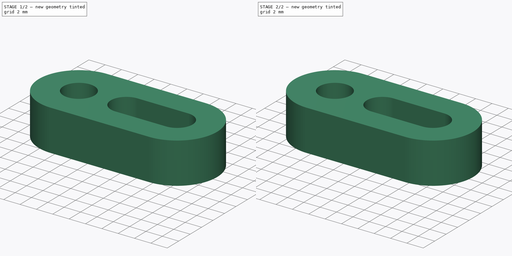
[diagram: build sequence overview — one tinted view per stage of 2, left to right]
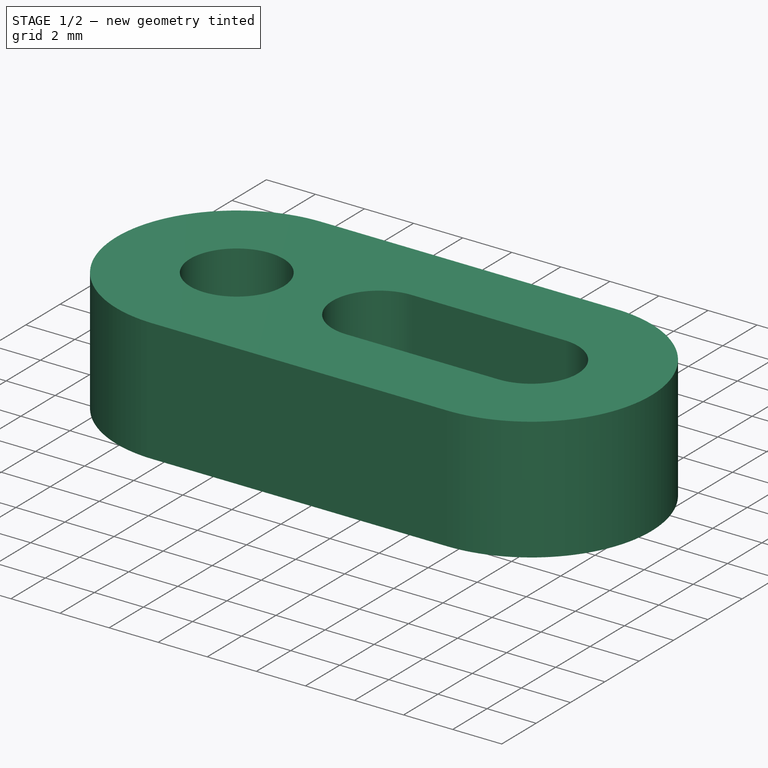
[diagram: stage 1 of 2 — iso view after this stage's code; geometry added in this stage tinted green]
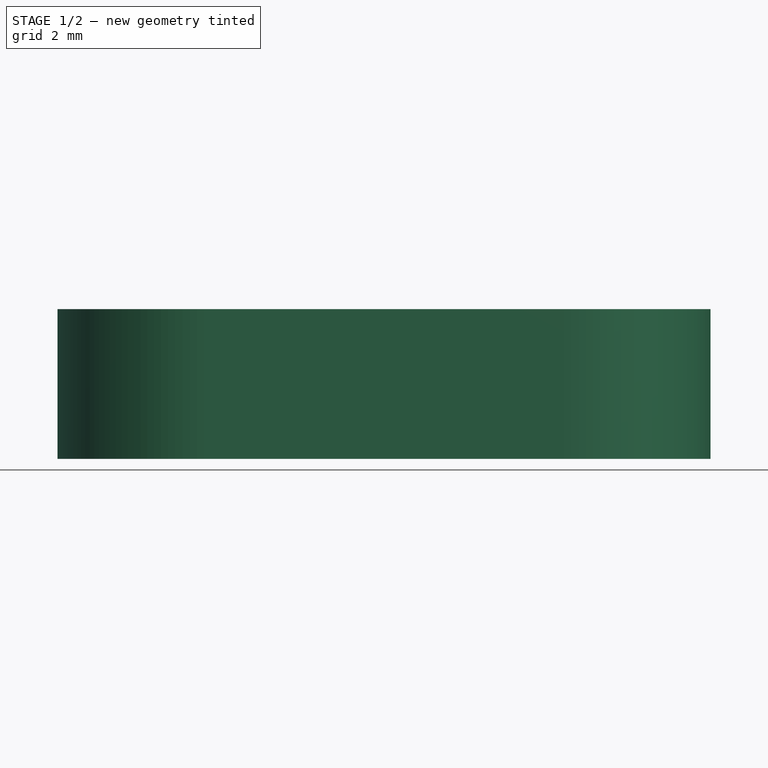
[diagram: stage 1 of 2 — front view after this stage's code; geometry added in this stage tinted green]
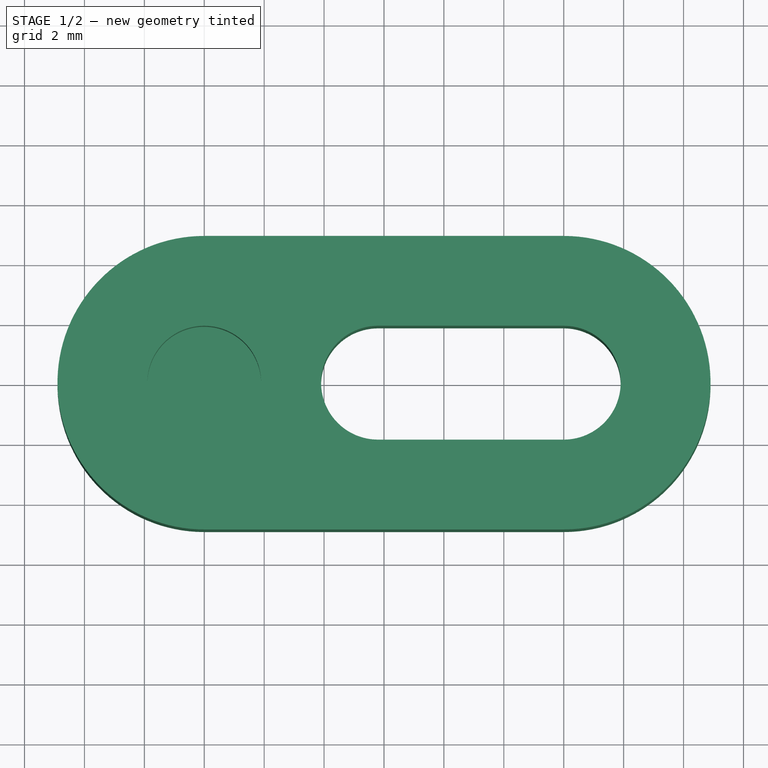
[diagram: stage 1 of 2 — top view after this stage's code; geometry added in this stage tinted green]
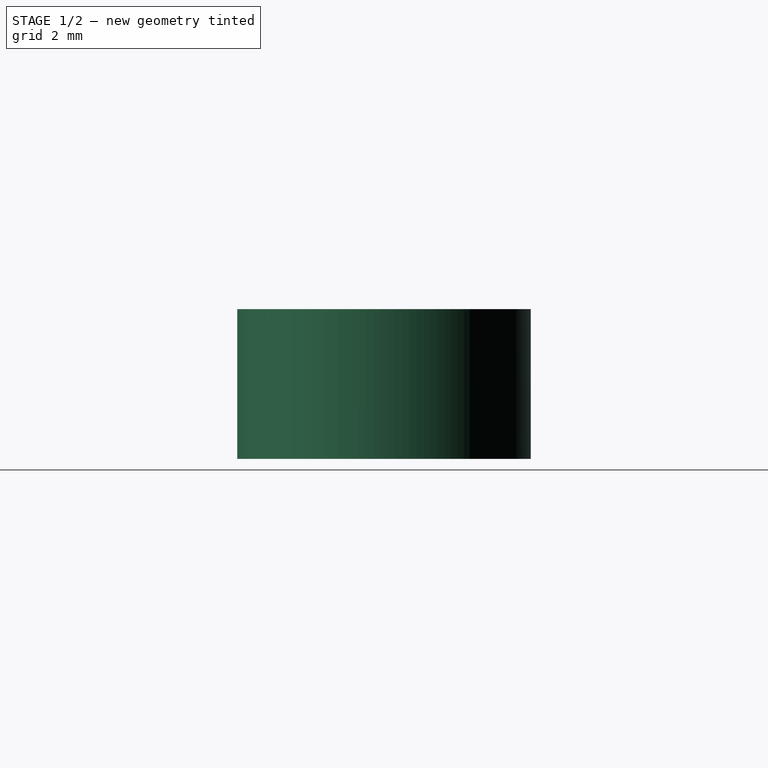
[diagram: stage 1 of 2 — right view after this stage's code; geometry added in this stage tinted green]
FCSTD DOCUMENT  (FreeCAD 0.19R)
Label: attach
License: All rights reserved
LicenseURL: http://en.wikipedia.org/wiki/All_rights_reserved
objects: Sketcher::SketchObject×1, PartDesign::Pad×1, PartDesign::Body×1, Part::Cylinder×1, Part::Cut×1
note: 6 computed .brp shape members not serialized (recipe doc carries the construction recipe); baked Part::Feature solids carry a one-line shape summary decoded from their .brp

FEATURE [Sketcher::SketchObject] Sketch
  FullyConstrained = true
  MapMode = 5
  Support = -> [XY_Plane]
  sketch-geometry (15):
    g0: LineSegment StartX=-6 StartY=4.9 StartZ=0 EndX=6 EndY=4.9 EndZ=0
    g1: LineSegment StartX=-6 StartY=-4.9 StartZ=0 EndX=6 EndY=-4.9 EndZ=0
    g2: ArcOfCircle CenterX=-6 CenterY=5e-16 CenterZ=0 NormalX=0 NormalY=0 NormalZ=1 AngleXU=0 Radius=4.9 StartAngle=1.5708 EndAngle=4.71239
    g3: ArcOfCircle CenterX=6 CenterY=-4e-16 CenterZ=0 NormalX=0 NormalY=0 NormalZ=1 AngleXU=0 Radius=4.9 StartAngle=4.71239 EndAngle=7.85398
    g4: Circle CenterX=-6 CenterY=5e-16 CenterZ=0 NormalX=0 NormalY=0 NormalZ=1 AngleXU=0 Radius=1.9
    g5: LineSegment StartX=-0.2 StartY=1.9 StartZ=0 EndX=6 EndY=1.9 EndZ=0
    g6: LineSegment StartX=-0.2 StartY=-1.9 StartZ=0 EndX=6 EndY=-1.9 EndZ=0
    g7: ArcOfCircle CenterX=-0.2 CenterY=-1e-16 CenterZ=0 NormalX=0 NormalY=0 NormalZ=1 AngleXU=0 Radius=1.9 StartAngle=1.5708 EndAngle=4.71239
    g8: ArcOfCircle CenterX=6 CenterY=-1e-16 CenterZ=0 NormalX=0 NormalY=0 NormalZ=1 AngleXU=0 Radius=1.9 StartAngle=4.71239 EndAngle=7.85398
    g9: GeomPoint X=7.9 Y=0 Z=0
    g10: GeomPoint X=10.9 Y=0 Z=0
    g11: GeomPoint X=-2.1 Y=0 Z=0
    g12: GeomPoint X=-4.1 Y=0 Z=0
    g13: GeomPoint X=-7.9 Y=0 Z=0
    g14: GeomPoint X=-10.9 Y=0 Z=0
  constraints (34):
    c: Symmetric(g0,g1,g-1)
    c: Tangent(g3,g0) = 1.5708
    c: Tangent(g2,g0) = 1.5708
    c: Tangent(g2,g1) = -1.5708
    c: Tangent(g3,g1) = -1.5708
    c: Coincident(g4,g2)
    c: Radius(g4) = 1.9
    c: DistanceX(g0,g0) = 12
    c: Symmetric(g0,g0,g-2)
    c: Horizontal(g5)
    c: Horizontal(g6)
    c: Equal(g6,g5)
    c: Symmetric(g5,g6,g-1)
    c: Coincident(g7,g6)
    c: Coincident(g8,g6)
    c: Tangent(g8,g5) = 1.5708
    c: Tangent(g7,g5) = 1.5708
    c: Radius(g8) = 1.9
    c: PointOnObject(g9,g8)
    c: PointOnObject(g9,g-1)
    c: PointOnObject(g10,g3)
    c: PointOnObject(g10,g-1)
    c: DistanceX(g9,g10) = 3
    c: PointOnObject(g11,g7)
    c: PointOnObject(g12,g-1)
    c: PointOnObject(g11,g-1)
    c: DistanceX(g12,g11) = 2
    c: PointOnObject(g13,g4)
    c: PointOnObject(g14,g2)
    c: PointOnObject(g14,g-1)
    c: PointOnObject(g13,g-1)
    c: DistanceX(g14,g13) = 3
    c: DistanceY(g1,g0) = 9.8
    c: PointOnObject(g12,g4)
FEATURE [PartDesign::Pad] Pad
  Direction = (1,1,1)
  Length = 5
  Length2 = 100
  Profile = -> Sketch
  Type = 0
FEATURE [PartDesign::Body] Body
  Group = -> [Sketch,Pad]
  Origin = -> Origin
  Tip = -> Pad
FEATURE [Part::Cylinder] Cylinder
  Angle = 360
  AttacherType = Attacher::AttachEngine3D
  Height = 3
  Placement = pos=(-6,0,0) rot=(0,0,1;0rad)
  Radius = 3
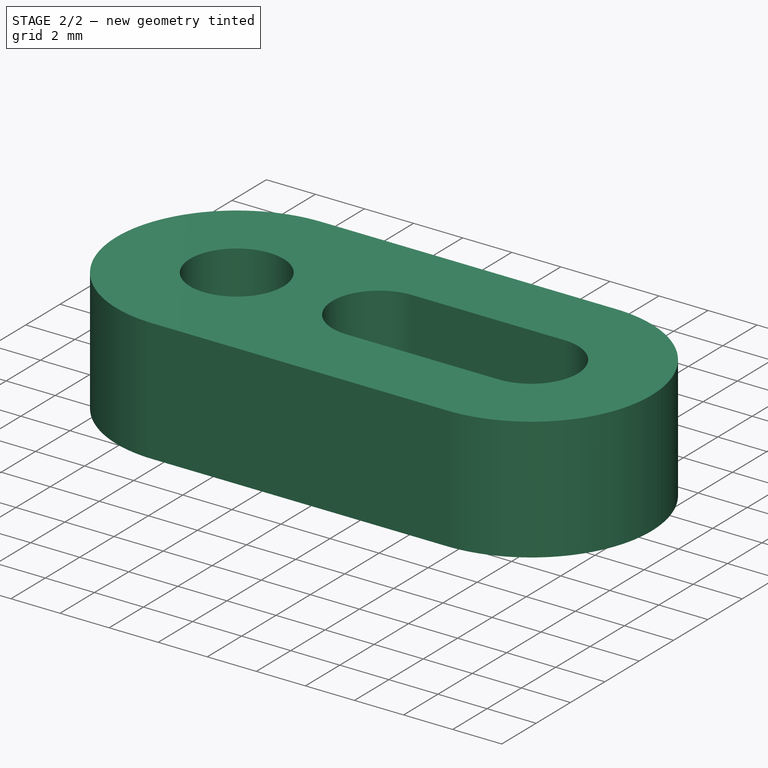
[diagram: stage 2 of 2 — iso view after this stage's code; geometry added in this stage tinted green]
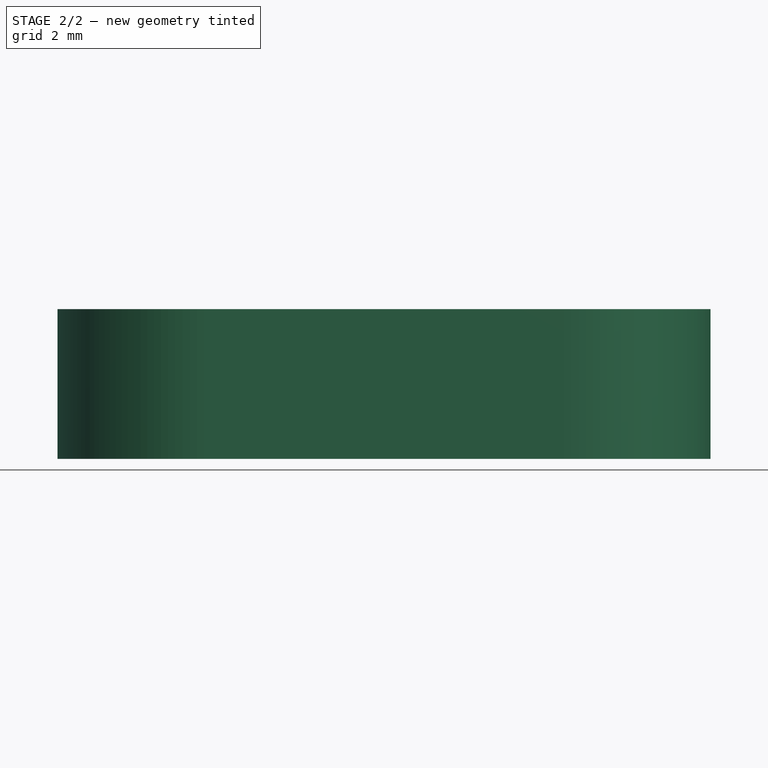
[diagram: stage 2 of 2 — front view after this stage's code; geometry added in this stage tinted green]
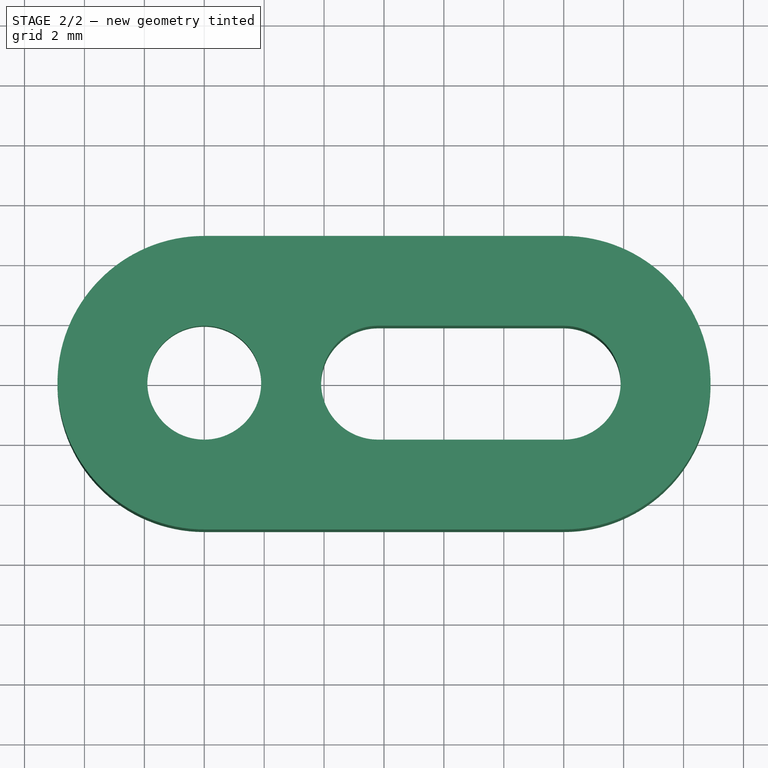
[diagram: stage 2 of 2 — top view after this stage's code; geometry added in this stage tinted green]
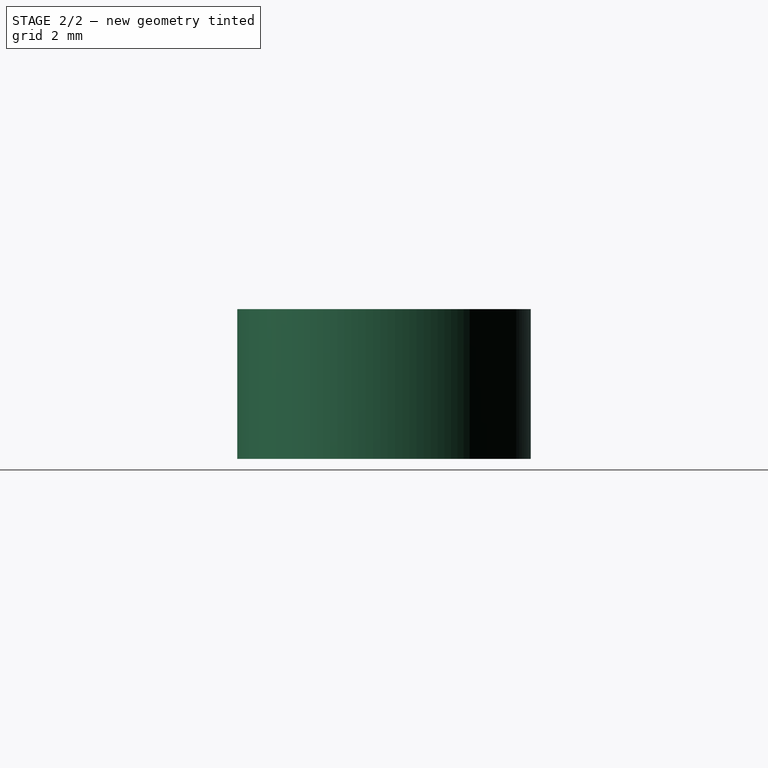
[diagram: stage 2 of 2 — right view after this stage's code; geometry added in this stage tinted green]
FEATURE [Part::Cut] Cut  label="attach cut"
  Base = -> Body
  Tool = -> Cylinder
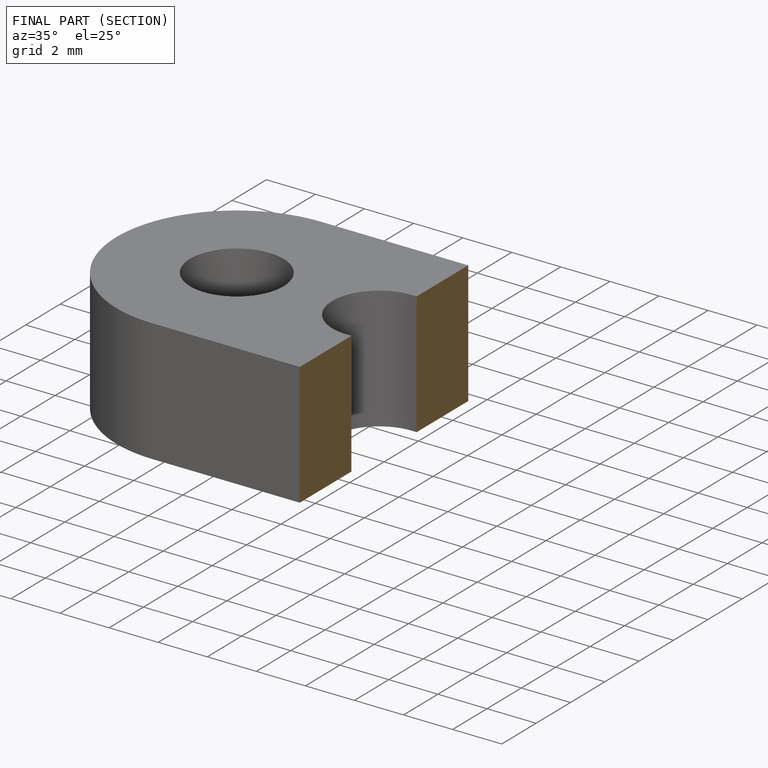
[diagram: finished part — half-section view (interior)]
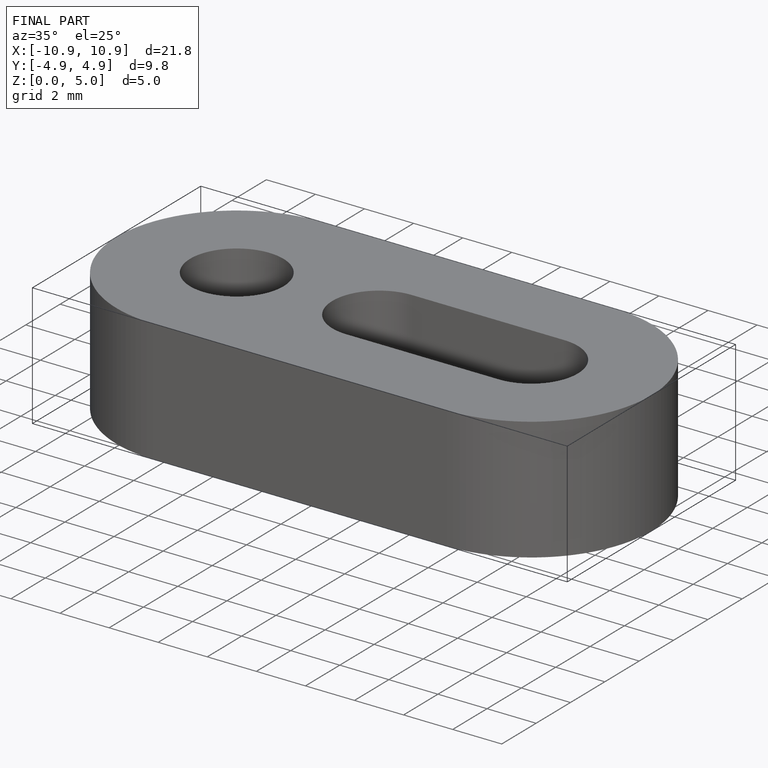
[diagram: finished part — iso view with bounding-box wireframe]
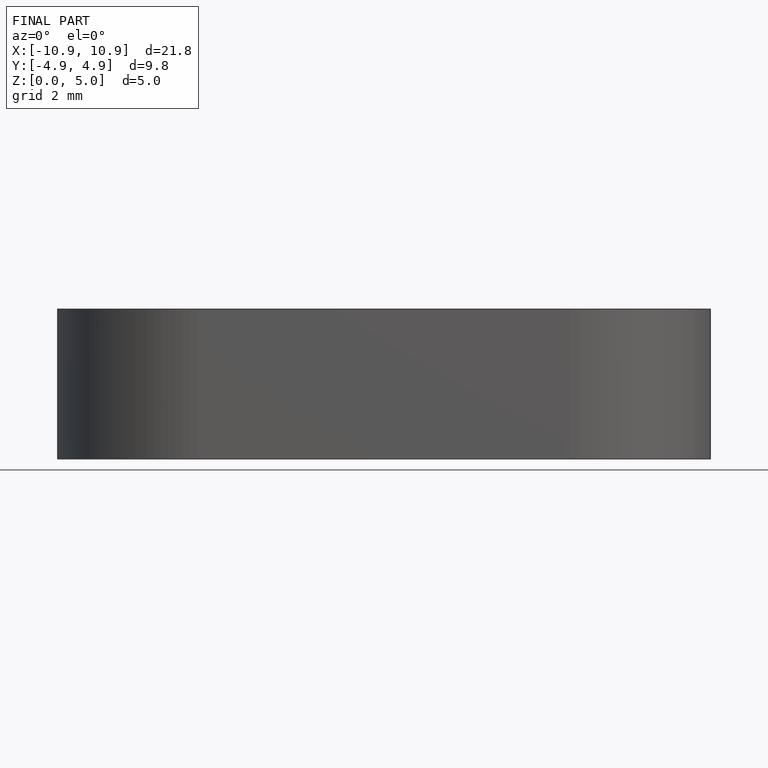
[diagram: finished part — front view with bounding-box wireframe]
